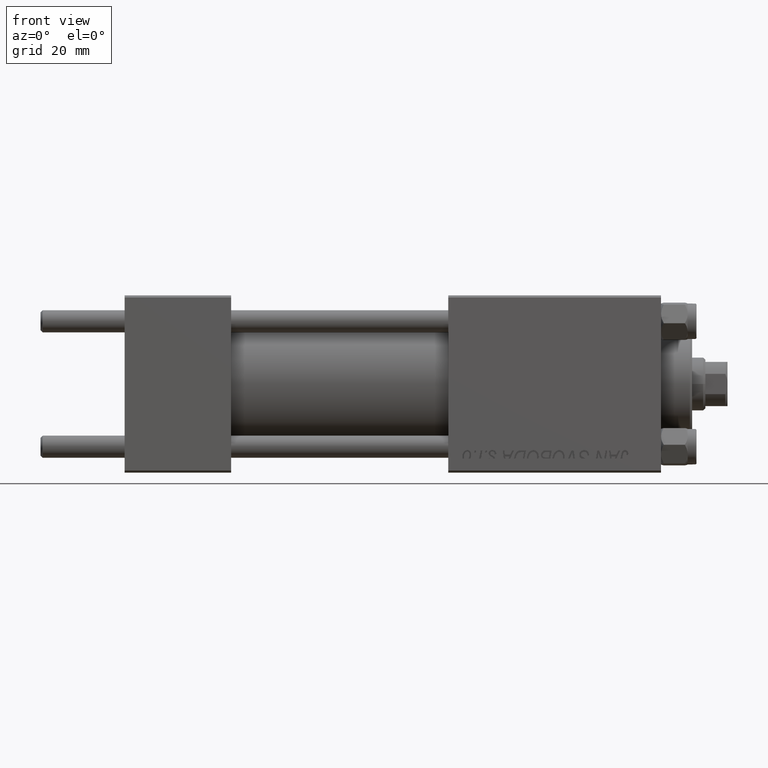
[diagram: clean part render]
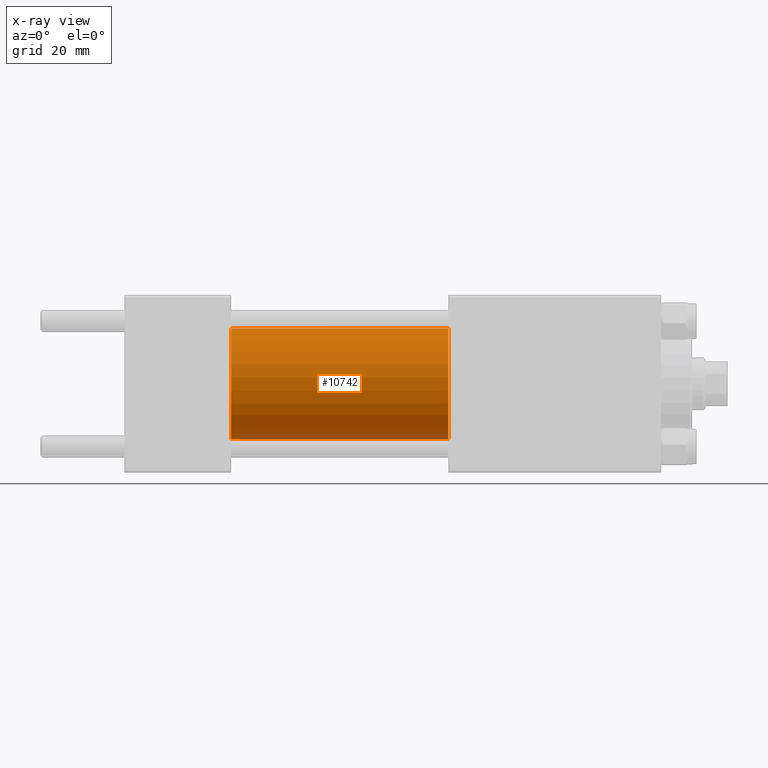
[diagram: x-ray — body ghosted, one internal face saturated and labeled with its STEP entity id]
A machine part, front view, then the same camera in x-ray: the body is ghosted and one INTERNAL B-rep face — a face not visible from any outside direction — is saturated and labeled: STEP entity #10742.
In plain terms, the highlighted cylindrical surface (partial cylindrical patch) has radius 12.5 mm, axis along (-1, -0, -0).
Its self-contained STEP definition (entity closure, byte-faithful):
#1133 = VERTEX_POINT ( 'NONE', #17111 ) ;
#2157 = EDGE_LOOP ( 'NONE', ( #16167, #2517, #16439, #11439 ) ) ;
#2369 = LINE ( 'NONE', #25567, #39209 ) ;
#2517 = ORIENTED_EDGE ( 'NONE', *, *, #32045, .T. ) ;
#4844 = AXIS2_PLACEMENT_3D ( 'NONE', #40924, #9889, #6356 ) ;
#6356 = DIRECTION ( 'NONE',  ( 0.000000000000000000, 0.000000000000000000, -1.000000000000000000 ) ) ;
#9889 = DIRECTION ( 'NONE',  ( 1.000000000000000000, 0.000000000000000000, 0.000000000000000000 ) ) ;
#9908 = VERTEX_POINT ( 'NONE', #23863 ) ;
#10742 = ADVANCED_FACE ( 'NONE', ( #22772 ), #26304, .F. ) ;
#11439 = ORIENTED_EDGE ( 'NONE', *, *, #48298, .F. ) ;
#11678 = DIRECTION ( 'NONE',  ( 1.000000000000000000, 0.000000000000000000, 0.000000000000000000 ) ) ;
#13505 = VERTEX_POINT ( 'NONE', #47062 ) ;
#13847 = VERTEX_POINT ( 'NONE', #29257 ) ;
#16167 = ORIENTED_EDGE ( 'NONE', *, *, #45128, .T. ) ;
#16439 = ORIENTED_EDGE ( 'NONE', *, *, #44794, .F. ) ;
#16934 = AXIS2_PLACEMENT_3D ( 'NONE', #45781, #11678, #42705 ) ;
#17111 = CARTESIAN_POINT ( 'NONE',  ( 73.00000000000001421, 0.000000000000000000, 12.49999999999999645 ) ) ;
#18994 = CARTESIAN_POINT ( 'NONE',  ( 73.00000000000001421, 0.000000000000000000, 0.000000000000000000 ) ) ;
#20858 = DIRECTION ( 'NONE',  ( -1.000000000000000000, -0.000000000000000000, -0.000000000000000000 ) ) ;
#22772 = FACE_OUTER_BOUND ( 'NONE', #2157, .T. ) ;
#23863 = CARTESIAN_POINT ( 'NONE',  ( 24.00000000000000000, 1.530808498934191127E-15, -12.49999999999999645 ) ) ;
#25392 = CARTESIAN_POINT ( 'NONE',  ( 73.00000000000001421, 0.000000000000000000, 12.49999999999999645 ) ) ;
#25567 = CARTESIAN_POINT ( 'NONE',  ( 73.00000000000001421, 1.530808498934191127E-15, -12.49999999999999645 ) ) ;
#26064 = DIRECTION ( 'NONE',  ( 0.000000000000000000, 0.000000000000000000, 1.000000000000000000 ) ) ;
#26304 = CYLINDRICAL_SURFACE ( 'NONE', #27846, 12.49999999999999645 ) ;
#27846 = AXIS2_PLACEMENT_3D ( 'NONE', #18994, #37924, #26064 ) ;
#29257 = CARTESIAN_POINT ( 'NONE',  ( 24.00000000000000000, 0.000000000000000000, 12.49999999999999645 ) ) ;
#29829 = CIRCLE ( 'NONE', #16934, 12.49999999999999645 ) ;
#32045 = EDGE_CURVE ( 'NONE', #13505, #9908, #2369, .T. ) ;
#32235 = VECTOR ( 'NONE', #20858, 1000.000000000000000 ) ;
#37924 = DIRECTION ( 'NONE',  ( -1.000000000000000000, -0.000000000000000000, -0.000000000000000000 ) ) ;
#39209 = VECTOR ( 'NONE', #40969, 1000.000000000000000 ) ;
#40924 = CARTESIAN_POINT ( 'NONE',  ( 73.00000000000001421, 0.000000000000000000, 0.000000000000000000 ) ) ;
#40969 = DIRECTION ( 'NONE',  ( -1.000000000000000000, -0.000000000000000000, -0.000000000000000000 ) ) ;
#42705 = DIRECTION ( 'NONE',  ( 0.000000000000000000, 0.000000000000000000, -1.000000000000000000 ) ) ;
#44085 = LINE ( 'NONE', #25392, #32235 ) ;
#44794 = EDGE_CURVE ( 'NONE', #13847, #9908, #29829, .T. ) ;
#45128 = EDGE_CURVE ( 'NONE', #1133, #13505, #47554, .T. ) ;
#45781 = CARTESIAN_POINT ( 'NONE',  ( 24.00000000000000000, 0.000000000000000000, 0.000000000000000000 ) ) ;
#47062 = CARTESIAN_POINT ( 'NONE',  ( 73.00000000000001421, 1.530808498934191127E-15, -12.49999999999999645 ) ) ;
#47554 = CIRCLE ( 'NONE', #4844, 12.49999999999999645 ) ;
#48298 = EDGE_CURVE ( 'NONE', #1133, #13847, #44085, .T. ) ;